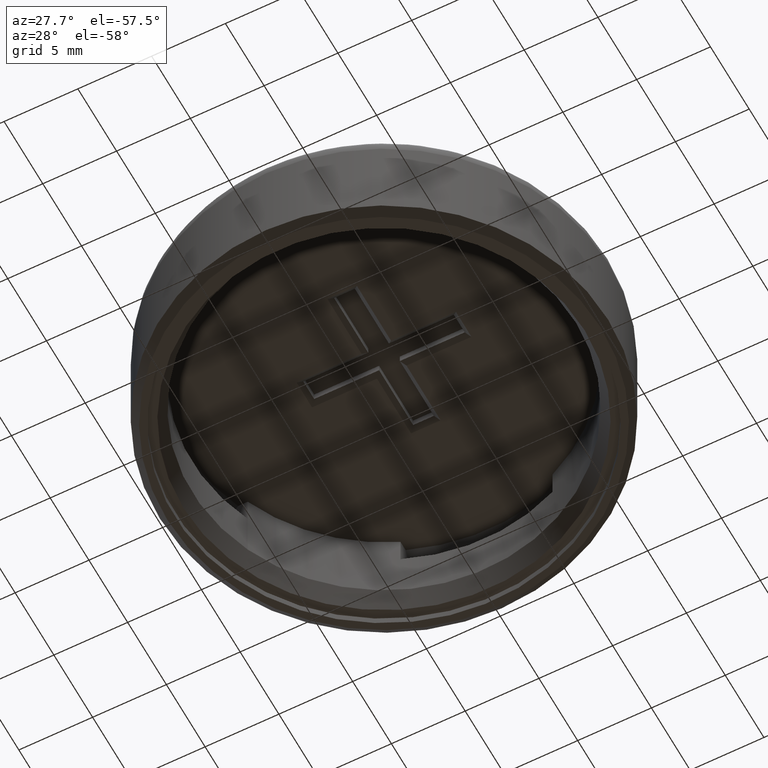
[diagram: clean part render]
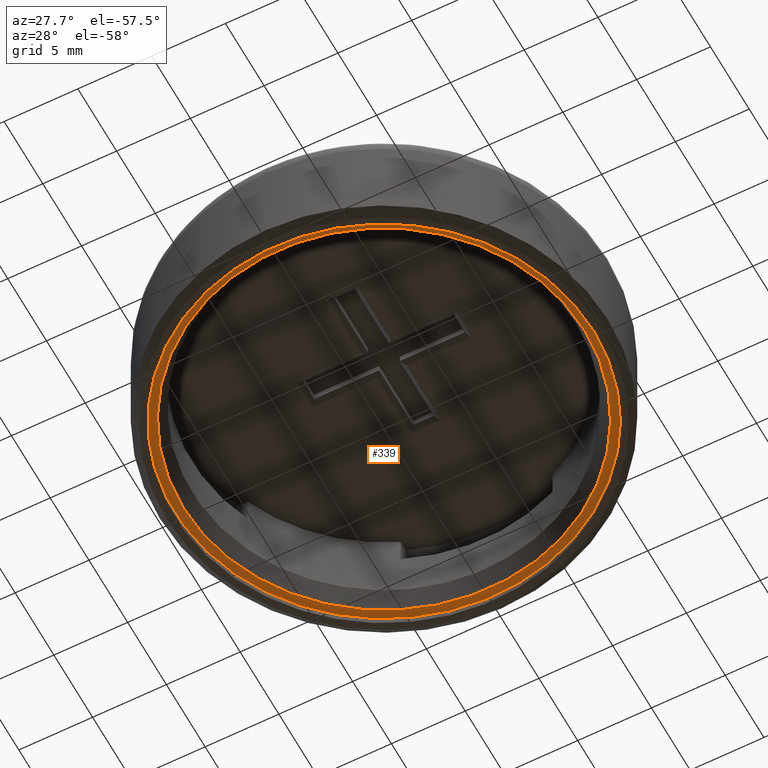
[diagram: same view with one face highlighted and labeled with its STEP entity id]
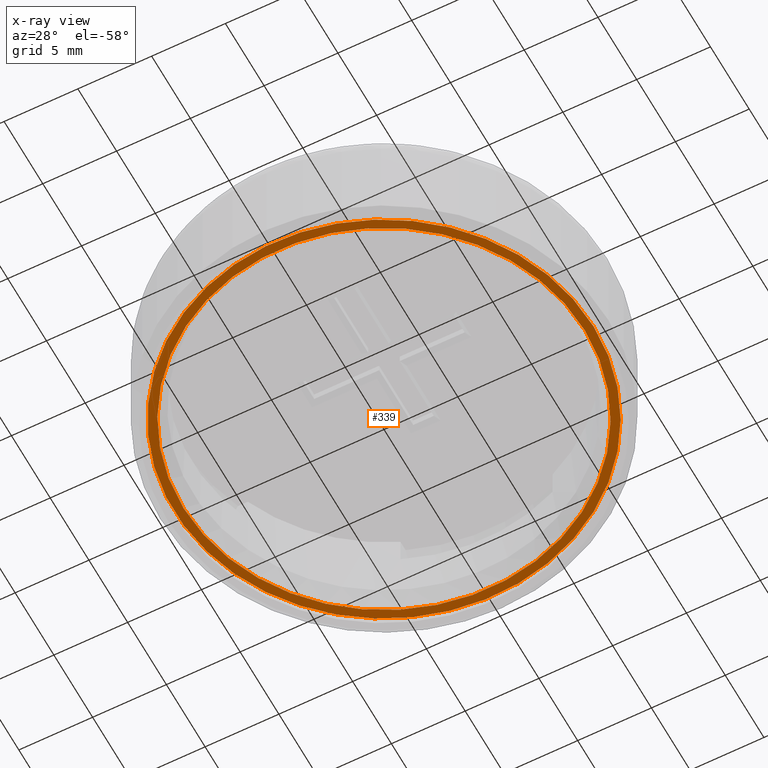
[diagram: x-ray of the same camera — body ghosted, the highlighted face saturated]
A machine part, auxiliary view. The second image highlights one B-rep face of the part: STEP entity #339.
The next image is the same camera in x-ray: the body ghosted, the highlighted face saturated — about 0% of this face is hidden behind the body in this view.
In plain terms, the highlighted planar face has unit normal (0, 0, -1).
Its self-contained STEP definition (entity closure, byte-faithful):
#74=PLANE('',#1043);
#99=FACE_BOUND('',#454,.T.);
#100=FACE_BOUND('',#455,.T.);
#339=ADVANCED_FACE('',(#99,#100),#74,.T.);
#454=EDGE_LOOP('',(#718));
#455=EDGE_LOOP('',(#719));
#718=ORIENTED_EDGE('',*,*,#826,.T.);
#719=ORIENTED_EDGE('',*,*,#825,.F.);
#741=VERTEX_POINT('',#1354);
#742=VERTEX_POINT('',#1357);
#825=EDGE_CURVE('',#741,#741,#943,.T.);
#826=EDGE_CURVE('',#742,#742,#944,.T.);
#943=CIRCLE('',#974,13.5999999999997);
#944=CIRCLE('',#976,14.1999999999996);
#974=AXIS2_PLACEMENT_3D('',#1353,#1080,#1081);
#976=AXIS2_PLACEMENT_3D('',#1356,#1084,#1085);
#1043=AXIS2_PLACEMENT_3D('',#1587,#1302,#1303);
#1080=DIRECTION('',(0.,0.,-1.));
#1081=DIRECTION('',(1.,0.,0.));
#1084=DIRECTION('',(0.,0.,-1.));
#1085=DIRECTION('',(1.,0.,0.));
#1302=DIRECTION('',(0.,0.,-1.));
#1303=DIRECTION('',(0.,-1.,0.));
#1353=CARTESIAN_POINT('',(-1.073733827E-011,9.99675966749676E-014,190.149999999999));
#1354=CARTESIAN_POINT('',(13.599999999989,9.99675966749676E-014,190.149999999999));
#1356=CARTESIAN_POINT('',(-1.073733827E-011,9.99675966749676E-014,190.149999999999));
#1357=CARTESIAN_POINT('',(14.1999999999889,9.99675966749676E-014,190.149999999999));
#1587=CARTESIAN_POINT('',(13.8999999999889,9.99675966749676E-014,190.15));